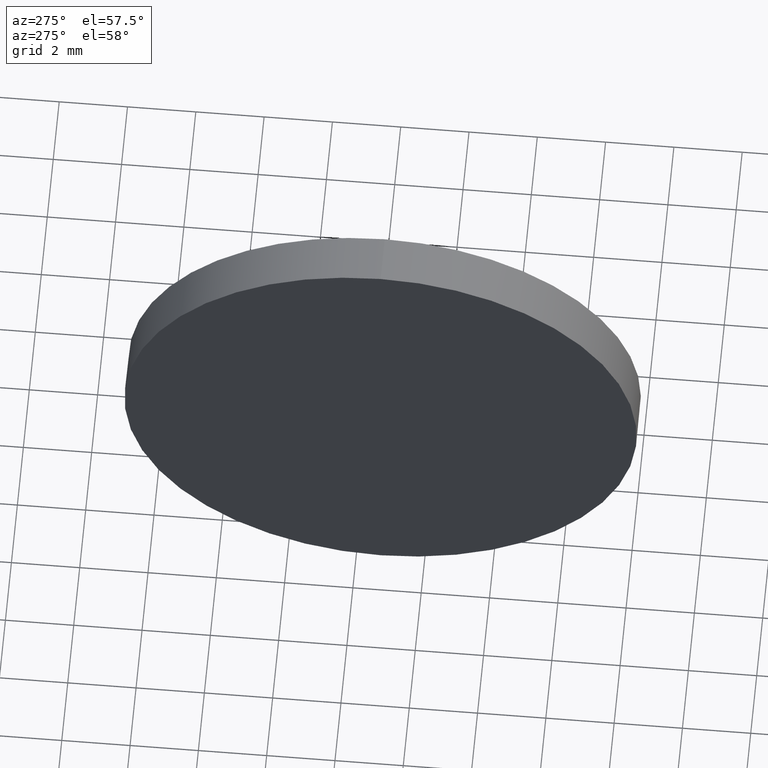
[diagram: clean part render]
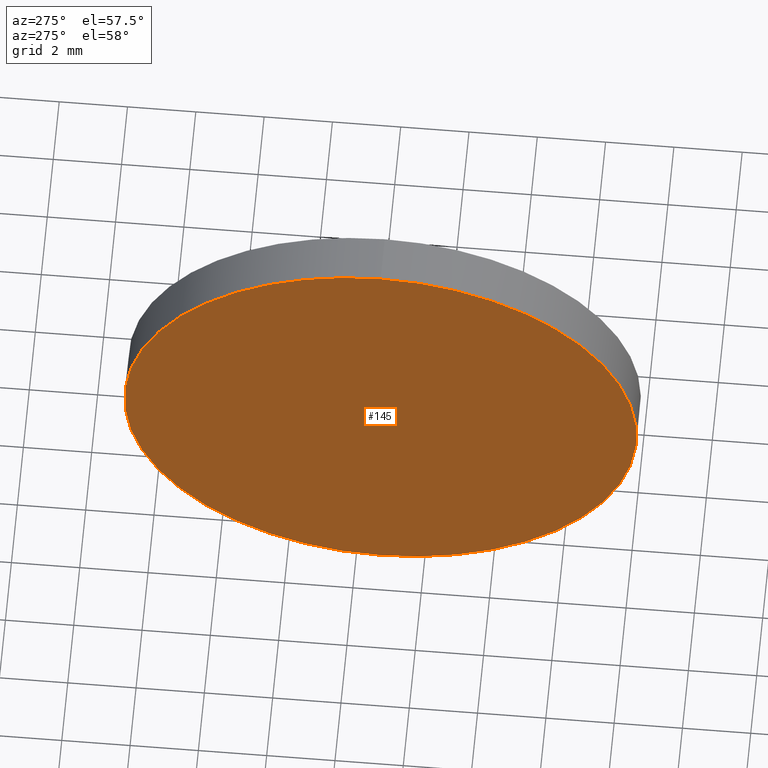
[diagram: same view with one face highlighted and labeled with its STEP entity id]
A machine part, auxiliary view. The second image highlights one B-rep face of the part: STEP entity #145.
In plain terms, the highlighted planar face has unit normal (1, 0, 0).
Its self-contained STEP definition (entity closure, byte-faithful):
#5 = DIRECTION ( 'NONE',  ( 1.000000000000000000, 0.0000000000000000000, 0.0000000000000000000 ) ) ;
#7 = EDGE_CURVE ( 'NONE', #23, #117, #101, .T. ) ;
#13 = EDGE_LOOP ( 'NONE', ( #62, #134 ) ) ;
#21 = CARTESIAN_POINT ( 'NONE',  ( 578.9881567995189500, 147.2765599219413800, -7.500000000000007100 ) ) ;
#23 = VERTEX_POINT ( 'NONE', #64 ) ;
#47 = AXIS2_PLACEMENT_3D ( 'NONE', #181, #5, #141 ) ;
#54 = CARTESIAN_POINT ( 'NONE',  ( 578.9881567995189500, 147.2765599219413800, 0.0000000000000000000 ) ) ;
#62 = ORIENTED_EDGE ( 'NONE', *, *, #7, .T. ) ;
#63 = DIRECTION ( 'NONE',  ( 0.0000000000000000000, 0.0000000000000000000, 1.000000000000000000 ) ) ;
#64 = CARTESIAN_POINT ( 'NONE',  ( 578.9881567995189500, 147.2765599219413800, 7.500000000000007100 ) ) ;
#101 = CIRCLE ( 'NONE', #137, 7.500000000000007100 ) ;
#102 = CARTESIAN_POINT ( 'NONE',  ( 578.9881567995189500, 147.2765599219413800, 0.0000000000000000000 ) ) ;
#104 = DIRECTION ( 'NONE',  ( -1.000000000000000000, -0.0000000000000000000, -0.0000000000000000000 ) ) ;
#114 = DIRECTION ( 'NONE',  ( -1.000000000000000000, -0.0000000000000000000, -0.0000000000000000000 ) ) ;
#117 = VERTEX_POINT ( 'NONE', #21 ) ;
#122 = PLANE ( 'NONE',  #47 ) ;
#134 = ORIENTED_EDGE ( 'NONE', *, *, #178, .T. ) ;
#136 = DIRECTION ( 'NONE',  ( 0.0000000000000000000, 0.0000000000000000000, 1.000000000000000000 ) ) ;
#137 = AXIS2_PLACEMENT_3D ( 'NONE', #102, #104, #63 ) ;
#141 = DIRECTION ( 'NONE',  ( 0.0000000000000000000, 0.0000000000000000000, -1.000000000000000000 ) ) ;
#142 = AXIS2_PLACEMENT_3D ( 'NONE', #54, #114, #136 ) ;
#145 = ADVANCED_FACE ( 'NONE', ( #168 ), #122, .F. ) ;
#149 = CIRCLE ( 'NONE', #142, 7.500000000000007100 ) ;
#168 = FACE_OUTER_BOUND ( 'NONE', #13, .T. ) ;
#178 = EDGE_CURVE ( 'NONE', #117, #23, #149, .T. ) ;
#181 = CARTESIAN_POINT ( 'NONE',  ( 578.9881567995189500, 147.2765599219413800, 0.0000000000000000000 ) ) ;